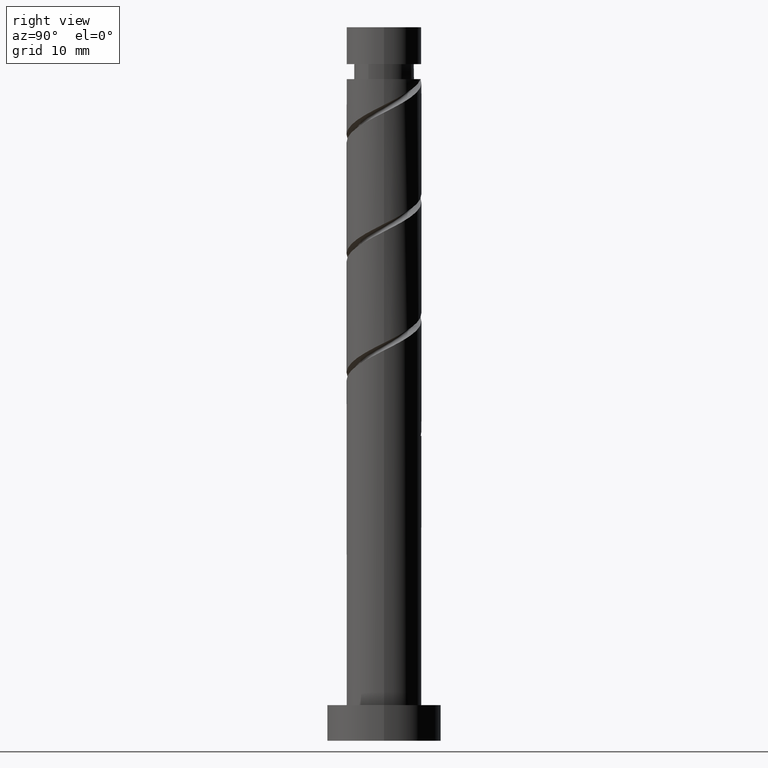
[diagram: clean part render]
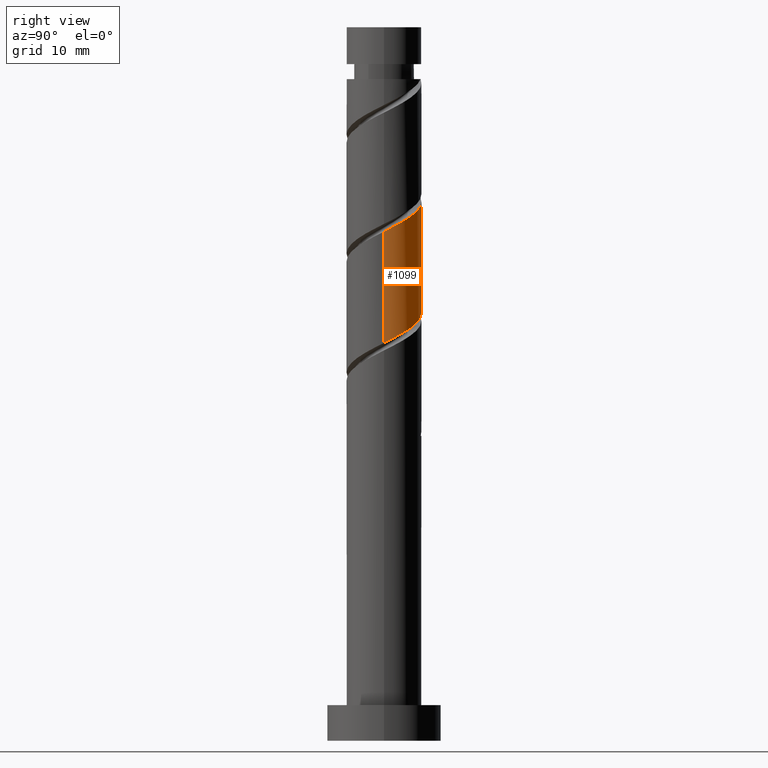
[diagram: same view with one face highlighted and labeled with its STEP entity id]
A machine part, right view. The second image highlights one B-rep face of the part: STEP entity #1099.
In plain terms, the highlighted cylindrical surface (partial cylindrical patch) has radius 5.25 mm, axis along (-0, -0, -1).
Its self-contained STEP definition (entity closure, byte-faithful):
#32 = CARTESIAN_POINT ( 'NONE',  ( 3.933332297989967419, 3.477268616829744197, 73.29038632854165769 ) ) ;
#55 = CARTESIAN_POINT ( 'NONE',  ( -1.951939124707006146, 4.960784712840750288, 76.53112706928241948 ) ) ;
#68 = CARTESIAN_POINT ( 'NONE',  ( 0.7779621673656081926, 5.192039567082272988, 75.14223818039350533 ) ) ;
#84 = CARTESIAN_POINT ( 'NONE',  ( 5.250000000000001776, 6.722534946102204886E-17, 55.76568566130819704 ) ) ;
#125 = CARTESIAN_POINT ( 'NONE',  ( -4.684003067524753483, 2.545499278557179501, 78.38297892113422449 ) ) ;
#134 = CARTESIAN_POINT ( 'NONE',  ( -4.978069106951918954, 1.667731383170263371, 78.84594188409721482 ) ) ;
#142 = DIRECTION ( 'NONE',  ( -0.000000000000000000, -0.000000000000000000, -1.000000000000000000 ) ) ;
#151 = CARTESIAN_POINT ( 'NONE',  ( -4.885419246230004120, 1.922284783419320853, 63.10520114335645303 ) ) ;
#178 = CARTESIAN_POINT ( 'NONE',  ( -2.506827424810088800, 4.612842536031337204, 61.25334929150461249 ) ) ;
#183 = VERTEX_POINT ( 'NONE', #619 ) ;
#184 = CARTESIAN_POINT ( 'NONE',  ( -2.741425107455531585, 4.477397500804735309, 76.99409003224535297 ) ) ;
#188 = CARTESIAN_POINT ( 'NONE',  ( -0.7779621673656025305, 5.192039567082266771, 60.32742336557868157 ) ) ;
#204 = DIRECTION ( 'NONE',  ( -0.000000000000000000, -0.000000000000000000, -1.000000000000000000 ) ) ;
#215 = ORIENTED_EDGE ( 'NONE', *, *, #705, .F. ) ;
#292 = CARTESIAN_POINT ( 'NONE',  ( -1.693458827948103762, 5.054863847005278465, 60.79038632854164348 ) ) ;
#299 = CARTESIAN_POINT ( 'NONE',  ( 0.1375344932168990342, 5.329215287159257741, 59.86446040261571966 ) ) ;
#301 = ORIENTED_EDGE ( 'NONE', *, *, #1472, .T. ) ;
#310 = CYLINDRICAL_SURFACE ( 'NONE', #1104, 5.250000000000000000 ) ;
#359 = CARTESIAN_POINT ( 'NONE',  ( -5.250000000000009770, 0.8560354520573930648, 79.27405637229838931 ) ) ;
#362 = CARTESIAN_POINT ( 'NONE',  ( -5.250000000000000888, -2.121333249658918145E-15, 64.09901899464151143 ) ) ;
#370 = CARTESIAN_POINT ( 'NONE',  ( -3.933332297989960757, 3.477268616829741088, 62.17927521743053632 ) ) ;
#381 = CARTESIAN_POINT ( 'NONE',  ( 5.224369918152165226, 1.060853558236559024, 71.90149743965278617 ) ) ;
#405 = CARTESIAN_POINT ( 'NONE',  ( 5.250000000000001776, 6.722534946102204886E-17, 55.76568566130819704 ) ) ;
#475 = CARTESIAN_POINT ( 'NONE',  ( -5.250000000000007105, -3.286572640316614447E-15, 79.70397588466398986 ) ) ;
#481 = CARTESIAN_POINT ( 'NONE',  ( -5.250000000000000888, 0.06773379024310997865, 64.06500162070915394 ) ) ;
#486 = ORIENTED_EDGE ( 'NONE', *, *, #693, .F. ) ;
#496 = CARTESIAN_POINT ( 'NONE',  ( 3.320196021672078501, 4.170821225057403048, 73.75334929150463381 ) ) ;
#547 =( BOUNDED_CURVE ( )  B_SPLINE_CURVE ( 2, ( #1155, #481, #814, #927, #151, #1411, #370, #603, #178, #292, #188, #299, #634, #639, #1078, #968, #748, #646, #1213, #1098, #84 ),
 .UNSPECIFIED., .F., .T. ) 
 B_SPLINE_CURVE_WITH_KNOTS ( ( 3, 2, 2, 2, 2, 2, 2, 2, 2, 2, 3 ),
 ( 0.6795248053855290626, 0.6805555555555555802, 0.6944444444444444198, 0.7083333333333333703, 0.7222222222222222099, 0.7361111111111111605, 0.7500000000000000000, 0.7638888888888888395, 0.7777777777777777901, 0.7916666666666666297, 0.8045248053855290626 ),
 .UNSPECIFIED. ) 
 CURVE ( )  GEOMETRIC_REPRESENTATION_ITEM ( )  RATIONAL_B_SPLINE_CURVE ( ( 0.9071930855141207006, 0.9080659294509683122, 0.9090909090909083945, 0.8952797754656429685, 0.9090909090909083945, 0.8952797754656429685, 0.9090909090909083945, 0.8952797754656429685, 0.9090909090909083945, 0.8952797754656429685, 0.9090909090909083945, 0.8952797754656429685, 0.9090909090909083945, 0.8952797754656429685, 0.9090909090909083945, 0.8952797754656429685, 0.9090909090909083945, 0.8952797754656429685, 0.9090909090909083945, 0.8963047551055830509, 0.9071930855141207006 ) ) 
 REPRESENTATION_ITEM ( '' )  );
#555 = VECTOR ( 'NONE', #874, 1000.000000000000000 ) ;
#573 = CARTESIAN_POINT ( 'NONE',  ( -3.530911090204057690, 3.994010288768724326, 77.45705299520828646 ) ) ;
#578 = EDGE_LOOP ( 'NONE', ( #650, #301, #215, #486 ) ) ;
#603 = CARTESIAN_POINT ( 'NONE',  ( -3.320196021672073616, 4.170821225057396830, 61.71631225446758151 ) ) ;
#613 = CARTESIAN_POINT ( 'NONE',  ( 4.546468574307857224, 2.783716008602082681, 72.82742336557870999 ) ) ;
#619 = CARTESIAN_POINT ( 'NONE',  ( -5.250000000000007105, -3.286572640316614447E-15, 79.70397588466398986 ) ) ;
#634 = CARTESIAN_POINT ( 'NONE',  ( 1.044736808961952423, 5.145000000000001350, 59.40149743965275775 ) ) ;
#639 = CARTESIAN_POINT ( 'NONE',  ( 1.951939124707003925, 4.960784712840743182, 58.93853447668978163 ) ) ;
#646 = CARTESIAN_POINT ( 'NONE',  ( 4.684003067524750819, 2.545499278557176392, 57.08668262483794820 ) ) ;
#650 = ORIENTED_EDGE ( 'NONE', *, *, #1352, .F. ) ;
#654 = CARTESIAN_POINT ( 'NONE',  ( 5.250000000000000000, 6.429395695523604153E-16, 100.0000000000000000 ) ) ;
#660 = DIRECTION ( 'NONE',  ( -1.000000000000000000, 0.000000000000000000, 0.000000000000000000 ) ) ;
#693 = EDGE_CURVE ( 'NONE', #183, #817, #1044, .T. ) ;
#705 = EDGE_CURVE ( 'NONE', #817, #1168, #547, .T. ) ;
#716 = CARTESIAN_POINT ( 'NONE',  ( -5.250000000000000000, 0.000000000000000000, 100.0000000000000000 ) ) ;
#740 = CARTESIAN_POINT ( 'NONE',  ( 5.250000000000006217, 0.06773379024310531571, 71.40465992526304717 ) ) ;
#748 = CARTESIAN_POINT ( 'NONE',  ( 4.107457078864401367, 3.269754783662944586, 57.54964558780088879 ) ) ;
#751 = FACE_OUTER_BOUND ( 'NONE', #578, .T. ) ;
#785 = CARTESIAN_POINT ( 'NONE',  ( -0.1375344932168983403, 5.329215287159264847, 75.60520114335648145 ) ) ;
#814 = CARTESIAN_POINT ( 'NONE',  ( -5.248252532265617276, 0.1354450352266073354, 64.03112706928239106 ) ) ;
#817 = VERTEX_POINT ( 'NONE', #362 ) ;
#848 = CARTESIAN_POINT ( 'NONE',  ( 0.000000000000000000, 0.000000000000000000, 100.0000000000000000 ) ) ;
#874 = DIRECTION ( 'NONE',  ( -0.000000000000000000, -0.000000000000000000, -1.000000000000000000 ) ) ;
#898 = VECTOR ( 'NONE', #142, 1000.000000000000000 ) ;
#927 = CARTESIAN_POINT ( 'NONE',  ( -5.224369918152159009, 1.060853558236559691, 63.56816410631942205 ) ) ;
#968 = CARTESIAN_POINT ( 'NONE',  ( 3.530911090204056801, 3.994010288768715000, 58.01260855076387912 ) ) ;
#1007 = CARTESIAN_POINT ( 'NONE',  ( -4.107457078864405808, 3.269754783662951247, 77.92001595817129100 ) ) ;
#1009 = VERTEX_POINT ( 'NONE', #1291 ) ;
#1044 = LINE ( 'NONE', #716, #898 ) ;
#1048 = CARTESIAN_POINT ( 'NONE',  ( 5.250000000000007105, -3.458370755605892201E-15, 71.37064255133064705 ) ) ;
#1078 = CARTESIAN_POINT ( 'NONE',  ( 2.741425107455532029, 4.477397500804728203, 58.47557151372683393 ) ) ;
#1098 = CARTESIAN_POINT ( 'NONE',  ( 5.250000000000000000, 0.8560354520573941750, 56.19560517367379049 ) ) ;
#1099 = ADVANCED_FACE ( 'NONE', ( #751 ), #310, .T. ) ;
#1104 = AXIS2_PLACEMENT_3D ( 'NONE', #848, #204, #660 ) ;
#1155 = CARTESIAN_POINT ( 'NONE',  ( -5.250000000000000888, -2.121333249658918145E-15, 64.09901899464151143 ) ) ;
#1168 = VERTEX_POINT ( 'NONE', #405 ) ;
#1196 = CARTESIAN_POINT ( 'NONE',  ( 1.693458827948110423, 5.054863847005282018, 74.67927521743051500 ) ) ;
#1213 = CARTESIAN_POINT ( 'NONE',  ( 4.978069106951913625, 1.667731383170260484, 56.62371966187497208 ) ) ;
#1217 = LINE ( 'NONE', #654, #555 ) ;
#1290 = CARTESIAN_POINT ( 'NONE',  ( -1.044736808961950869, 5.145000000000006679, 76.06816410631941494 ) ) ;
#1291 = CARTESIAN_POINT ( 'NONE',  ( 5.250000000000007105, -3.458370755605892201E-15, 71.37064255133066126 ) ) ;
#1295 = CARTESIAN_POINT ( 'NONE',  ( 4.885419246230010337, 1.922284783419320631, 72.36446040261573387 ) ) ;
#1311 = CARTESIAN_POINT ( 'NONE',  ( 2.506827424810094129, 4.612842536031341645, 74.21631225446759572 ) ) ;
#1352 = EDGE_CURVE ( 'NONE', #1009, #183, #1373, .T. ) ;
#1373 =( BOUNDED_CURVE ( )  B_SPLINE_CURVE ( 2, ( #1048, #740, #1434, #381, #1295, #613, #32, #496, #1311, #1196, #68, #785, #1290, #55, #184, #573, #1007, #125, #134, #359, #475 ),
 .UNSPECIFIED., .F., .T. ) 
 B_SPLINE_CURVE_WITH_KNOTS ( ( 3, 2, 2, 2, 2, 2, 2, 2, 2, 2, 3 ),
 ( 0.4295248053855290071, 0.4305555555555555802, 0.4444444444444444198, 0.4583333333333333703, 0.4722222222222222099, 0.4861111111111111605, 0.5000000000000000000, 0.5138888888888888395, 0.5277777777777777901, 0.5416666666666667407, 0.5545248053855291737 ),
 .UNSPECIFIED. ) 
 CURVE ( )  GEOMETRIC_REPRESENTATION_ITEM ( )  RATIONAL_B_SPLINE_CURVE ( ( 0.9071930855141256966, 0.9080659294509734192, 0.9090909090909136125, 0.8952797754656481866, 0.9090909090909136125, 0.8952797754656481866, 0.9090909090909136125, 0.8952797754656481866, 0.9090909090909136125, 0.8952797754656481866, 0.9090909090909136125, 0.8952797754656481866, 0.9090909090909136125, 0.8952797754656481866, 0.9090909090909136125, 0.8952797754656481866, 0.9090909090909136125, 0.8952797754656481866, 0.9090909090909136125, 0.8963047551055881579, 0.9071930855141261407 ) ) 
 REPRESENTATION_ITEM ( '' )  );
#1411 = CARTESIAN_POINT ( 'NONE',  ( -4.546468574307849231, 2.783716008602082237, 62.64223818039348401 ) ) ;
#1434 = CARTESIAN_POINT ( 'NONE',  ( 5.248252532265624382, 0.1354450352266066693, 71.43853447668979584 ) ) ;
#1472 = EDGE_CURVE ( 'NONE', #1009, #1168, #1217, .T. ) ;